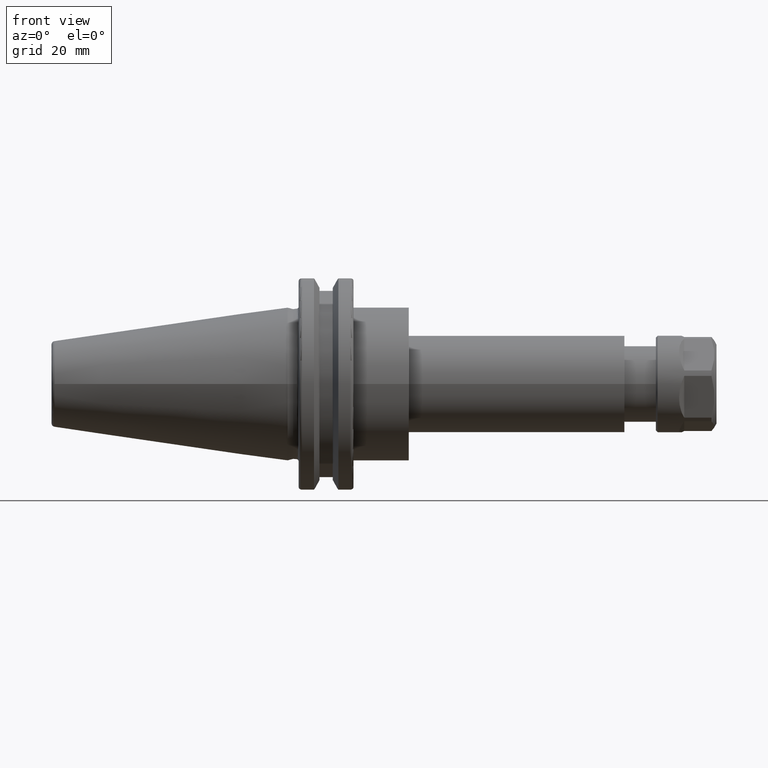
[diagram: clean part render]
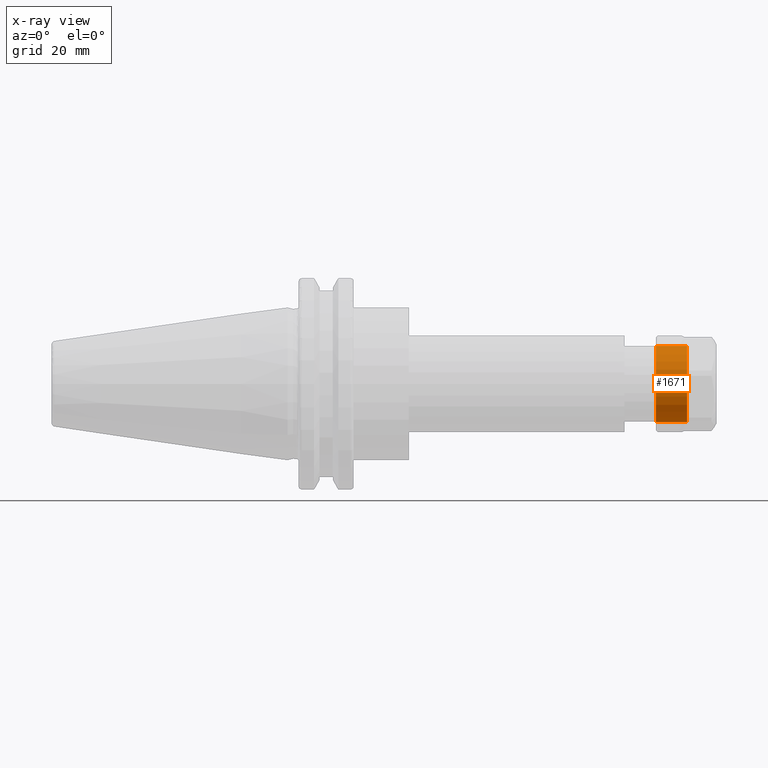
[diagram: x-ray — body ghosted, one internal face saturated and labeled with its STEP entity id]
A machine part, front view, then the same camera in x-ray: the body is ghosted and one INTERNAL B-rep face — a face not visible from any outside direction — is saturated and labeled: STEP entity #1671.
In plain terms, the highlighted cylindrical surface (bore or boss wall) has radius 11 mm, axis along (-1, 0, -0).
Its self-contained STEP definition (entity closure, byte-faithful):
#291=FACE_OUTER_BOUND('',#401,.T.);
#401=EDGE_LOOP('',(#1549,#1550,#1551,#1552));
#510=LINE('',#3038,#619);
#619=VECTOR('',#2405,11.);
#697=CIRCLE('',#1927,11.);
#698=CIRCLE('',#1928,11.);
#851=VERTEX_POINT('',#3035);
#852=VERTEX_POINT('',#3037);
#1084=EDGE_CURVE('',#851,#851,#697,.T.);
#1085=EDGE_CURVE('',#851,#852,#510,.T.);
#1086=EDGE_CURVE('',#852,#852,#698,.T.);
#1549=ORIENTED_EDGE('',*,*,#1084,.F.);
#1550=ORIENTED_EDGE('',*,*,#1085,.T.);
#1551=ORIENTED_EDGE('',*,*,#1086,.F.);
#1552=ORIENTED_EDGE('',*,*,#1085,.F.);
#1576=CYLINDRICAL_SURFACE('',#1926,11.);
#1671=ADVANCED_FACE('',(#291),#1576,.T.);
#1926=AXIS2_PLACEMENT_3D('',#3034,#2401,#2402);
#1927=AXIS2_PLACEMENT_3D('',#3036,#2403,#2404);
#1928=AXIS2_PLACEMENT_3D('',#3039,#2406,#2407);
#2401=DIRECTION('center_axis',(-1.,0.,0.));
#2402=DIRECTION('ref_axis',(0.,-1.,0.));
#2403=DIRECTION('center_axis',(-1.,0.,0.));
#2404=DIRECTION('ref_axis',(0.,-1.,0.));
#2405=DIRECTION('',(1.,0.,0.));
#2406=DIRECTION('center_axis',(1.,0.,0.));
#2407=DIRECTION('ref_axis',(0.,1.,0.));
#3034=CARTESIAN_POINT('Origin',(-8.75,0.,0.));
#3035=CARTESIAN_POINT('',(-8.75,11.,0.));
#3036=CARTESIAN_POINT('Origin',(-8.75,0.,0.));
#3037=CARTESIAN_POINT('',(0.25,11.,0.));
#3038=CARTESIAN_POINT('',(-8.75,11.,-1.34711147906209E-15));
#3039=CARTESIAN_POINT('Origin',(0.25,0.,0.));